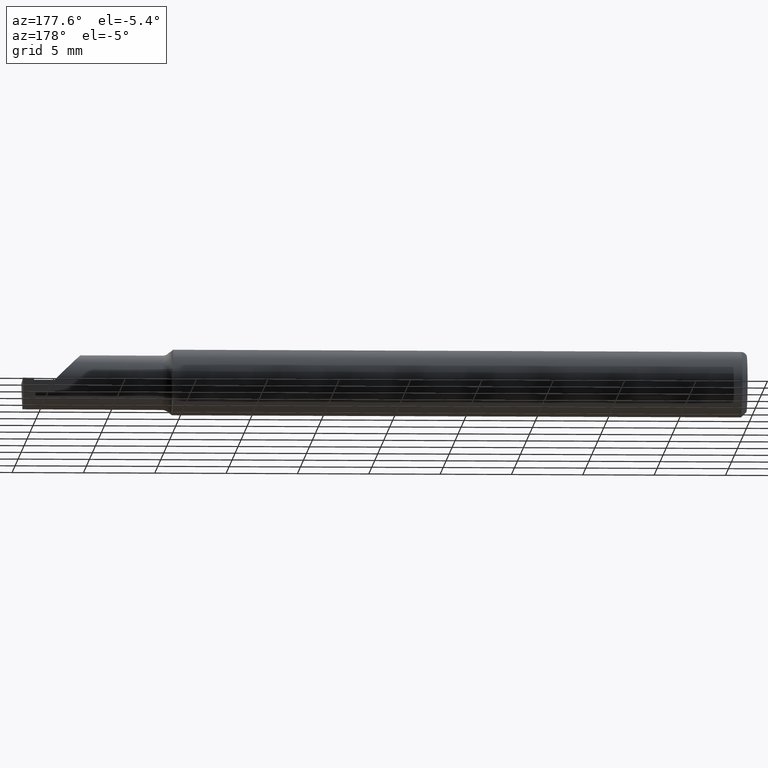
[diagram: clean part render]
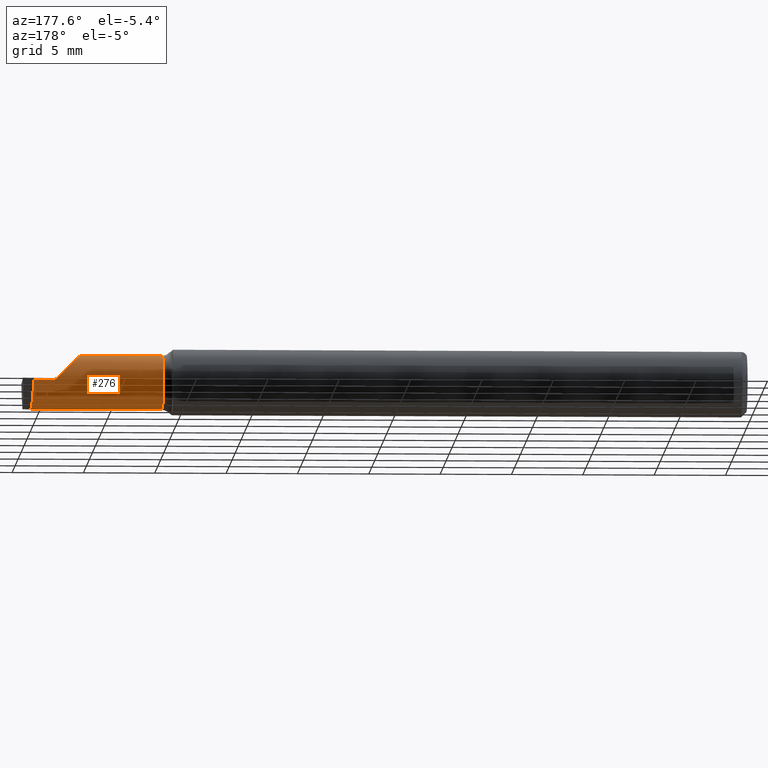
[diagram: same view with one face highlighted and labeled with its STEP entity id]
A machine part, auxiliary view. The second image highlights one B-rep face of the part: STEP entity #276.
In plain terms, the highlighted cylindrical surface (edge-blend (fillet) strip) has radius 1.905 mm, axis along (-1, -0, -0).
Its self-contained STEP definition (entity closure, byte-faithful):
#2 = CARTESIAN_POINT ( 'NONE',  ( 1.609999999999999654, -0.04259999999999997816, 0.07499999999999999722 ) ) ;
#9 = VECTOR ( 'NONE', #384, 39.37007874015748143 ) ;
#26 = CARTESIAN_POINT ( 'NONE',  ( 1.973213402547462803, -0.04260000000000001286, -0.07499999999999998335 ) ) ;
#42 = ORIENTED_EDGE ( 'NONE', *, *, #675, .F. ) ;
#60 = CARTESIAN_POINT ( 'NONE',  ( 1.584999999999999964, -0.04259999999999998510, 0.000000000000000000 ) ) ;
#64 = CARTESIAN_POINT ( 'NONE',  ( 1.970027797685394821, 0.03157410243558826657, -0.01282266061342995228 ) ) ;
#74 = ORIENTED_EDGE ( 'NONE', *, *, #604, .F. ) ;
#93 = CARTESIAN_POINT ( 'NONE',  ( 1.866066017177982594, 0.03240000000000000518, 0.04393398282201787380 ) ) ;
#109 = AXIS2_PLACEMENT_3D ( 'NONE', #177, #547, #309 ) ;
#118 = EDGE_CURVE ( 'NONE', #413, #552, #560, .T. ) ;
#131 = EDGE_CURVE ( 'NONE', #295, #280, #716, .T. ) ;
#177 = CARTESIAN_POINT ( 'NONE',  ( 1.609999999999999654, -0.04259999999999998510, 0.000000000000000000 ) ) ;
#179 = EDGE_LOOP ( 'NONE', ( #372, #270, #42, #74, #266, #602, #310, #737 ) ) ;
#193 = EDGE_CURVE ( 'NONE', #243, #221, #374, .T. ) ;
#220 = CARTESIAN_POINT ( 'NONE',  ( 1.835000000000000409, -0.04259999999999998510, 0.07499999999999999722 ) ) ;
#221 = VERTEX_POINT ( 'NONE', #762 ) ;
#236 = CIRCLE ( 'NONE', #109, 0.07499999999999999722 ) ;
#238 = DIRECTION ( 'NONE',  ( -1.000000000000000000, -0.000000000000000000, -0.000000000000000000 ) ) ;
#243 = VERTEX_POINT ( 'NONE', #301 ) ;
#245 = CARTESIAN_POINT ( 'NONE',  ( 1.969499999999999806, 0.03240000000000001212, 5.082262127853098687E-17 ) ) ;
#266 = ORIENTED_EDGE ( 'NONE', *, *, #193, .T. ) ;
#270 = ORIENTED_EDGE ( 'NONE', *, *, #601, .T. ) ;
#276 = ADVANCED_FACE ( 'NONE', ( #611 ), #545, .T. ) ;
#280 = VERTEX_POINT ( 'NONE', #615 ) ;
#284 = CARTESIAN_POINT ( 'NONE',  ( 1.970284083932823727, 0.02994487577554294511, -0.01903262984222201318 ) ) ;
#295 = VERTEX_POINT ( 'NONE', #245 ) ;
#301 = CARTESIAN_POINT ( 'NONE',  ( 1.835000000000000409, -0.04259999999999998510, 0.07499999999999999722 ) ) ;
#309 = DIRECTION ( 'NONE',  ( 0.000000000000000000, 0.000000000000000000, 1.000000000000000000 ) ) ;
#310 = ORIENTED_EDGE ( 'NONE', *, *, #131, .T. ) ;
#319 = LINE ( 'NONE', #380, #9 ) ;
#339 = LINE ( 'NONE', #639, #502 ) ;
#347 = CARTESIAN_POINT ( 'NONE',  ( 1.609999999999999654, -0.04259999999999997122, -0.07499999999999999722 ) ) ;
#354 = EDGE_CURVE ( 'NONE', #221, #295, #319, .T. ) ;
#362 = DIRECTION ( 'NONE',  ( 0.000000000000000000, 0.000000000000000000, 1.000000000000000000 ) ) ;
#372 = ORIENTED_EDGE ( 'NONE', *, *, #118, .F. ) ;
#374 =( BOUNDED_CURVE ( )  B_SPLINE_CURVE ( 3, ( #220, #404, #93, #637 ),
 .UNSPECIFIED., .F., .T. ) 
 B_SPLINE_CURVE_WITH_KNOTS ( ( 4, 4 ),
 ( 0.000000000000000000, 1.570796326794896558 ),
 .UNSPECIFIED. ) 
 CURVE ( )  GEOMETRIC_REPRESENTATION_ITEM ( )  RATIONAL_B_SPLINE_CURVE ( ( 1.000000000000000000, 0.8047378541243649375, 0.8047378541243649375, 1.000000000000000000 ) ) 
 REPRESENTATION_ITEM ( '' )  );
#380 = CARTESIAN_POINT ( 'NONE',  ( 1.584999999999999964, 0.03240000000000000518, 5.082284216461540301E-17 ) ) ;
#384 = DIRECTION ( 'NONE',  ( 1.000000000000000000, 0.000000000000000000, 0.000000000000000000 ) ) ;
#404 = CARTESIAN_POINT ( 'NONE',  ( 1.835000000000000187, 0.001333982822017879596, 0.07499999999999998335 ) ) ;
#406 = DIRECTION ( 'NONE',  ( -1.000000000000000000, -0.000000000000000000, -0.000000000000000000 ) ) ;
#413 = VERTEX_POINT ( 'NONE', #26 ) ;
#488 = VERTEX_POINT ( 'NONE', #347 ) ;
#502 = VECTOR ( 'NONE', #712, 39.37007874015748143 ) ;
#523 = LINE ( 'NONE', #717, #682 ) ;
#525 = CARTESIAN_POINT ( 'NONE',  ( 1.973214534726833724, -0.007134900077140332759, -0.07499999999999999722 ) ) ;
#545 = CYLINDRICAL_SURFACE ( 'NONE', #690, 0.07499999999999999722 ) ;
#547 = DIRECTION ( 'NONE',  ( -1.000000000000000000, -0.000000000000000000, -0.000000000000000000 ) ) ;
#552 = VERTEX_POINT ( 'NONE', #773 ) ;
#560 =( BOUNDED_CURVE ( )  B_SPLINE_CURVE ( 3, ( #759, #525, #650, #284 ),
 .UNSPECIFIED., .F., .F. ) 
 B_SPLINE_CURVE_WITH_KNOTS ( ( 4, 4 ),
 ( 3.140983202202990654, 4.455205321888862535 ),
 .UNSPECIFIED. ) 
 CURVE ( )  GEOMETRIC_REPRESENTATION_ITEM ( )  RATIONAL_B_SPLINE_CURVE ( ( 1.000000000000000000, 0.8611734602017913076, 0.8611734602017913076, 1.000000000000000000 ) ) 
 REPRESENTATION_ITEM ( '' )  );
#601 = EDGE_CURVE ( 'NONE', #413, #488, #523, .T. ) ;
#602 = ORIENTED_EDGE ( 'NONE', *, *, #354, .T. ) ;
#604 = EDGE_CURVE ( 'NONE', #243, #618, #339, .T. ) ;
#611 = FACE_OUTER_BOUND ( 'NONE', #179, .T. ) ;
#615 = CARTESIAN_POINT ( 'NONE',  ( 1.969499999999999806, 0.03239999167003616148, -3.534818988850973635E-05 ) ) ;
#617 = AXIS2_PLACEMENT_3D ( 'NONE', #771, #766, #704 ) ;
#618 = VERTEX_POINT ( 'NONE', #2 ) ;
#637 = CARTESIAN_POINT ( 'NONE',  ( 1.910000000000000142, 0.03240000000000002600, 1.102182119232621301E-17 ) ) ;
#639 = CARTESIAN_POINT ( 'NONE',  ( 1.584999999999999964, -0.04259999999999998510, 0.07499999999999999722 ) ) ;
#649 =( BOUNDED_CURVE ( )  B_SPLINE_CURVE ( 3, ( #739, #64, #677, #661 ),
 .UNSPECIFIED., .F., .T. ) 
 B_SPLINE_CURVE_WITH_KNOTS ( ( 4, 4 ),
 ( 4.455205321888866088, 4.711308219781928486 ),
 .UNSPECIFIED. ) 
 CURVE ( )  GEOMETRIC_REPRESENTATION_ITEM ( )  RATIONAL_B_SPLINE_CURVE ( ( 1.000000000000000000, 0.9945417399294781413, 0.9945417399294781413, 1.000000000000000000 ) ) 
 REPRESENTATION_ITEM ( '' )  );
#650 = CARTESIAN_POINT ( 'NONE',  ( 1.972080687037212510, 0.02094495418688687230, -0.05333678008583635916 ) ) ;
#661 = CARTESIAN_POINT ( 'NONE',  ( 1.969499999999999806, 0.03239999167003616148, -3.534818988850973635E-05 ) ) ;
#675 = EDGE_CURVE ( 'NONE', #618, #488, #236, .T. ) ;
#677 = CARTESIAN_POINT ( 'NONE',  ( 1.969765001967077156, 0.03239696580267937415, -0.006455479666460818902 ) ) ;
#682 = VECTOR ( 'NONE', #406, 39.37007874015748143 ) ;
#690 = AXIS2_PLACEMENT_3D ( 'NONE', #60, #238, #362 ) ;
#700 = EDGE_CURVE ( 'NONE', #552, #280, #649, .T. ) ;
#704 = DIRECTION ( 'NONE',  ( 0.000000000000000000, 0.000000000000000000, 1.000000000000000000 ) ) ;
#712 = DIRECTION ( 'NONE',  ( -1.000000000000000000, -0.000000000000000000, -0.000000000000000000 ) ) ;
#716 = CIRCLE ( 'NONE', #617, 0.07499999999999999722 ) ;
#717 = CARTESIAN_POINT ( 'NONE',  ( 1.584999999999999964, -0.04259999999999997816, -0.07499999999999999722 ) ) ;
#737 = ORIENTED_EDGE ( 'NONE', *, *, #700, .F. ) ;
#739 = CARTESIAN_POINT ( 'NONE',  ( 1.970284083932823727, 0.02994487577554294511, -0.01903262984222201318 ) ) ;
#759 = CARTESIAN_POINT ( 'NONE',  ( 1.973213402547462803, -0.04260000000000001286, -0.07499999999999998335 ) ) ;
#762 = CARTESIAN_POINT ( 'NONE',  ( 1.910000000000000142, 0.03240000000000002600, 1.102182119232621301E-17 ) ) ;
#766 = DIRECTION ( 'NONE',  ( -1.000000000000000000, -0.000000000000000000, -0.000000000000000000 ) ) ;
#771 = CARTESIAN_POINT ( 'NONE',  ( 1.969499999999999806, -0.04259999999999998510, 0.000000000000000000 ) ) ;
#773 = CARTESIAN_POINT ( 'NONE',  ( 1.970284083932823727, 0.02994487577554294511, -0.01903262984222201318 ) ) ;